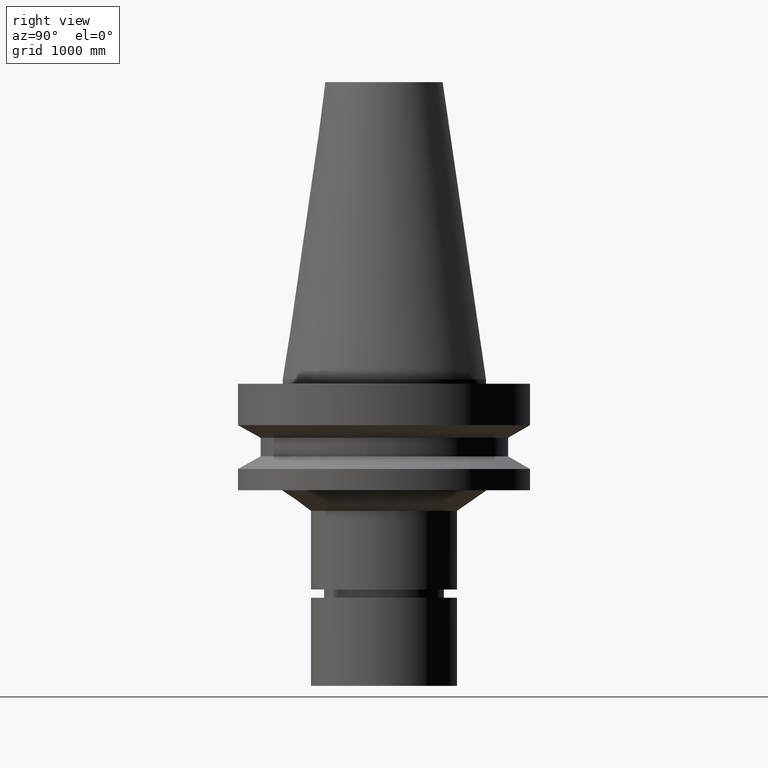
[diagram: clean part render]
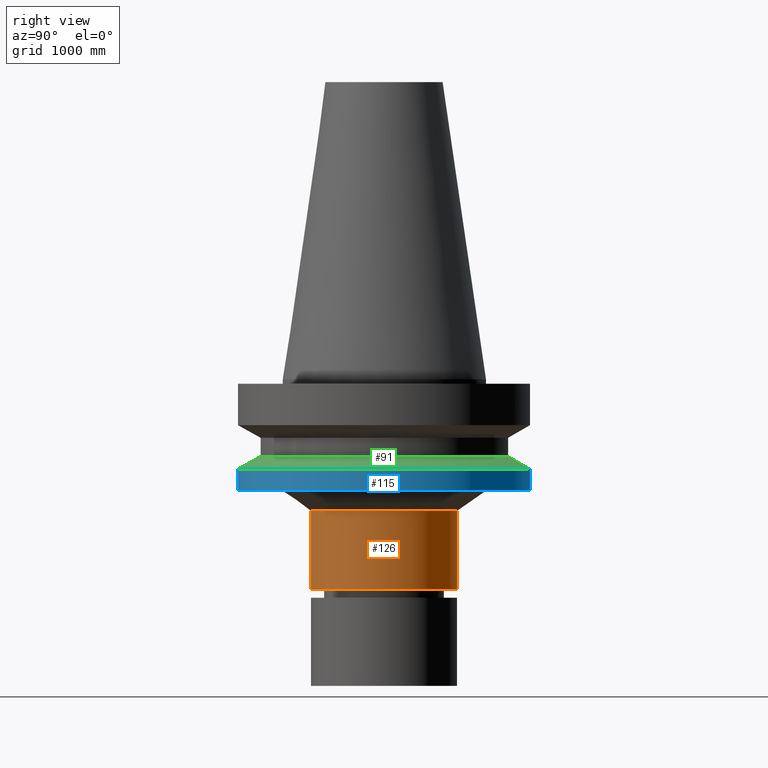
[diagram: same view with three faces highlighted in distinct colors, each labeled with its STEP entity id]
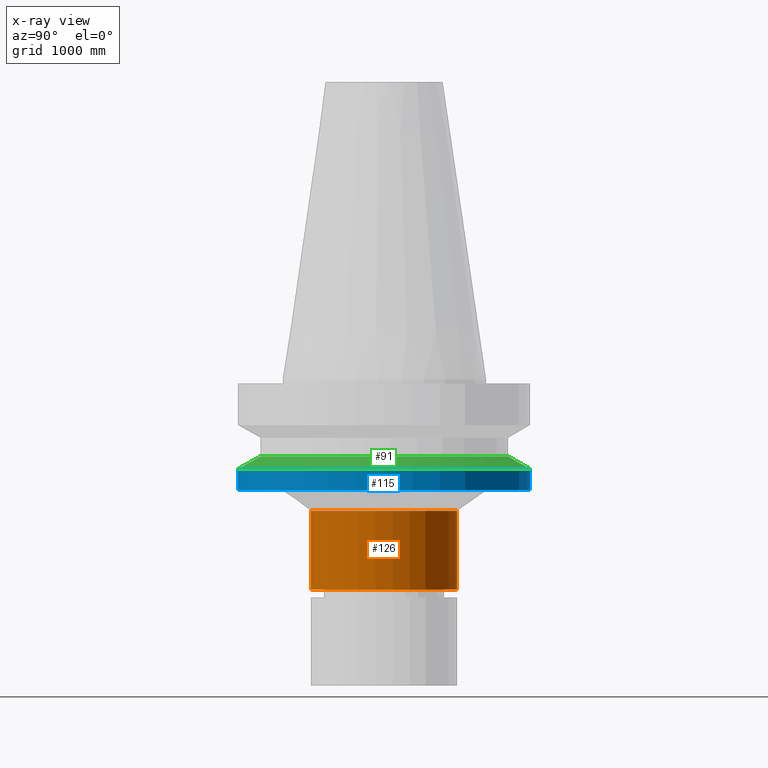
[diagram: x-ray of the same camera — body ghosted, the three highlighted faces saturated]
A machine part, right view with three faces highlighted in distinct colors.
The next image is the same camera in x-ray (body ghosted, the three faces saturated) — at least one of them is partly hidden behind the body in this view.
Their STEP definitions:

[orange] entity #126 — the highlighted cylindrical surface (bore or boss wall) has radius 635 mm, axis along (-0, 0, 1).
#126=ADVANCED_FACE('Unnamed[1]',(#281,#282),#283,.T.);
#152=EDGE_CURVE('Unnamed[1]',#321,#321,#322,.T.);
#157=EDGE_CURVE('Unnamed[1]',#329,#329,#330,.T.);
#281=FACE_BOUND('',#477,.T.);
#282=FACE_BOUND('',#478,.T.);
#283=CYLINDRICAL_SURFACE('',#479,25.0000000000002);
#321=VERTEX_POINT('',#526);
#322=CIRCLE('',#527,25.0000000000001);
#329=VERTEX_POINT('',#536);
#330=CIRCLE('',#537,25.0000000000004);
#477=EDGE_LOOP('',(#670));
#478=EDGE_LOOP('',(#671));
#479=AXIS2_PLACEMENT_3D('',#672,#673,#674);
#526=CARTESIAN_POINT('',(4.40873812527379E-015,25.0000000000001,-72.0001575694041));
#527=AXIS2_PLACEMENT_3D('',#714,#715,#716);
#536=CARTESIAN_POINT('',(2.75941339741647E-015,25.0000000000004,-45.0646406676223));
#537=AXIS2_PLACEMENT_3D('',#723,#724,#725);
#670=ORIENTED_EDGE('',*,*,#157,.F.);
#671=ORIENTED_EDGE('',*,*,#152,.T.);
#672=CARTESIAN_POINT('',(3.58407576134513E-015,1.29879340062442E-014,-58.5323991185132));
#673=DIRECTION('',(-6.12323399573677E-017,1.40684069917097E-019,1.0));
#674=DIRECTION('',(-4.81853831597516E-033,1.0,-1.40684069917097E-019));
#714=CARTESIAN_POINT('',(4.40873812527379E-015,1.29860393071724E-014,-72.0001575694041));
#715=DIRECTION('',(-6.12323399573676E-017,1.40684069917098E-019,1.0));
#716=DIRECTION('',(-4.8185383159752E-033,1.0,-1.40684069917098E-019));
#723=CARTESIAN_POINT('',(2.75941339741647E-015,1.2989828705316E-014,-45.0646406676223));
#724=DIRECTION('',(-6.12323399573677E-017,1.40684069917096E-019,1.0));
#725=DIRECTION('',(-4.81853831596796E-033,1.0,-1.40684069917096E-019));

[blue] entity #115 — the highlighted cylindrical surface (bore or boss wall) has radius 1270 mm, axis along (-0, 0, 1).
#115=ADVANCED_FACE('Unnamed[1]',(#263,#264),#265,.T.);
#171=EDGE_CURVE('Unnamed[1]',#348,#348,#349,.T.);
#173=EDGE_CURVE('Unnamed[1]',#351,#351,#352,.T.);
#263=FACE_BOUND('',#455,.T.);
#264=FACE_BOUND('',#456,.T.);
#265=CYLINDRICAL_SURFACE('',#457,50.0);
#348=VERTEX_POINT('',#559);
#349=CIRCLE('',#560,50.0);
#351=VERTEX_POINT('',#563);
#352=CIRCLE('',#564,50.0);
#455=EDGE_LOOP('',(#649));
#456=EDGE_LOOP('',(#650));
#457=AXIS2_PLACEMENT_3D('',#651,#652,#653);
#559=CARTESIAN_POINT('',(1.87983283669119E-015,50.0,-30.7000000000001));
#560=AXIS2_PLACEMENT_3D('',#743,#744,#745);
#563=CARTESIAN_POINT('',(2.32682891837996E-015,50.0,-37.9999999999998));
#564=AXIS2_PLACEMENT_3D('',#746,#747,#748);
#649=ORIENTED_EDGE('',*,*,#171,.F.);
#650=ORIENTED_EDGE('',*,*,#173,.T.);
#651=CARTESIAN_POINT('',(2.10333087753557E-015,1.29913360845731E-014,-34.3499999999999));
#652=DIRECTION('',(-6.12323399573677E-017,1.40684069917098E-019,1.0));
#653=DIRECTION('',(-4.81853831597521E-033,1.0,-1.40684069917098E-019));
#743=CARTESIAN_POINT('',(1.87983283669119E-015,1.29918495814284E-014,-30.7));
#744=DIRECTION('',(-6.12323399573677E-017,1.40684069917098E-019,1.0));
#745=DIRECTION('',(-4.81853831597521E-033,1.0,-1.40684069917098E-019));
#746=CARTESIAN_POINT('',(2.32682891837996E-015,1.29908225877178E-014,-37.9999999999998));
#747=DIRECTION('',(-6.12323399573677E-017,1.40684069917098E-019,1.0));
#748=DIRECTION('',(-4.81853831597521E-033,1.0,-1.40684069917098E-019));

[green] entity #91 — the highlighted conical surface has half-angle 60 deg.
#91=ADVANCED_FACE('Unnamed[1]',(#226,#227),#228,.T.);
#123=EDGE_CURVE('Unnamed[1]',#277,#277,#278,.T.);
#171=EDGE_CURVE('Unnamed[1]',#348,#348,#349,.T.);
#226=FACE_BOUND('',#408,.T.);
#227=FACE_BOUND('',#409,.T.);
#228=CONICAL_SURFACE('',#410,46.25,1.04719755108882);
#277=VERTEX_POINT('',#472);
#278=CIRCLE('',#473,42.5);
#348=VERTEX_POINT('',#559);
#349=CIRCLE('',#560,50.0);
#408=EDGE_LOOP('',(#608));
#409=EDGE_LOOP('',(#609));
#410=AXIS2_PLACEMENT_3D('',#610,#611,#612);
#472=CARTESIAN_POINT('',(1.61468902694397E-015,42.5,-26.3698729800001));
#473=AXIS2_PLACEMENT_3D('',#666,#667,#668);
#559=CARTESIAN_POINT('',(1.87983283669119E-015,50.0,-30.7000000000001));
#560=AXIS2_PLACEMENT_3D('',#743,#744,#745);
#608=ORIENTED_EDGE('',*,*,#123,.F.);
#609=ORIENTED_EDGE('',*,*,#171,.T.);
#610=CARTESIAN_POINT('',(1.74726093181758E-015,1.29921541713746E-014,-28.5349364900001));
#611=DIRECTION('',(6.12323399573677E-017,-1.40684069941551E-019,-1.0));
#612=DIRECTION('',(-4.81853831597153E-033,1.0,-1.40684069941551E-019));
#666=CARTESIAN_POINT('',(1.61468902694397E-015,1.29924587613209E-014,-26.3698729800001));
#667=DIRECTION('',(-6.12323399573677E-017,1.40684069970318E-019,1.0));
#668=DIRECTION('',(-4.81853831596719E-033,1.0,-1.40684069970318E-019));
#743=CARTESIAN_POINT('',(1.87983283669119E-015,1.29918495814284E-014,-30.7));
#744=DIRECTION('',(-6.12323399573677E-017,1.40684069917098E-019,1.0));
#745=DIRECTION('',(-4.81853831597521E-033,1.0,-1.40684069917098E-019));